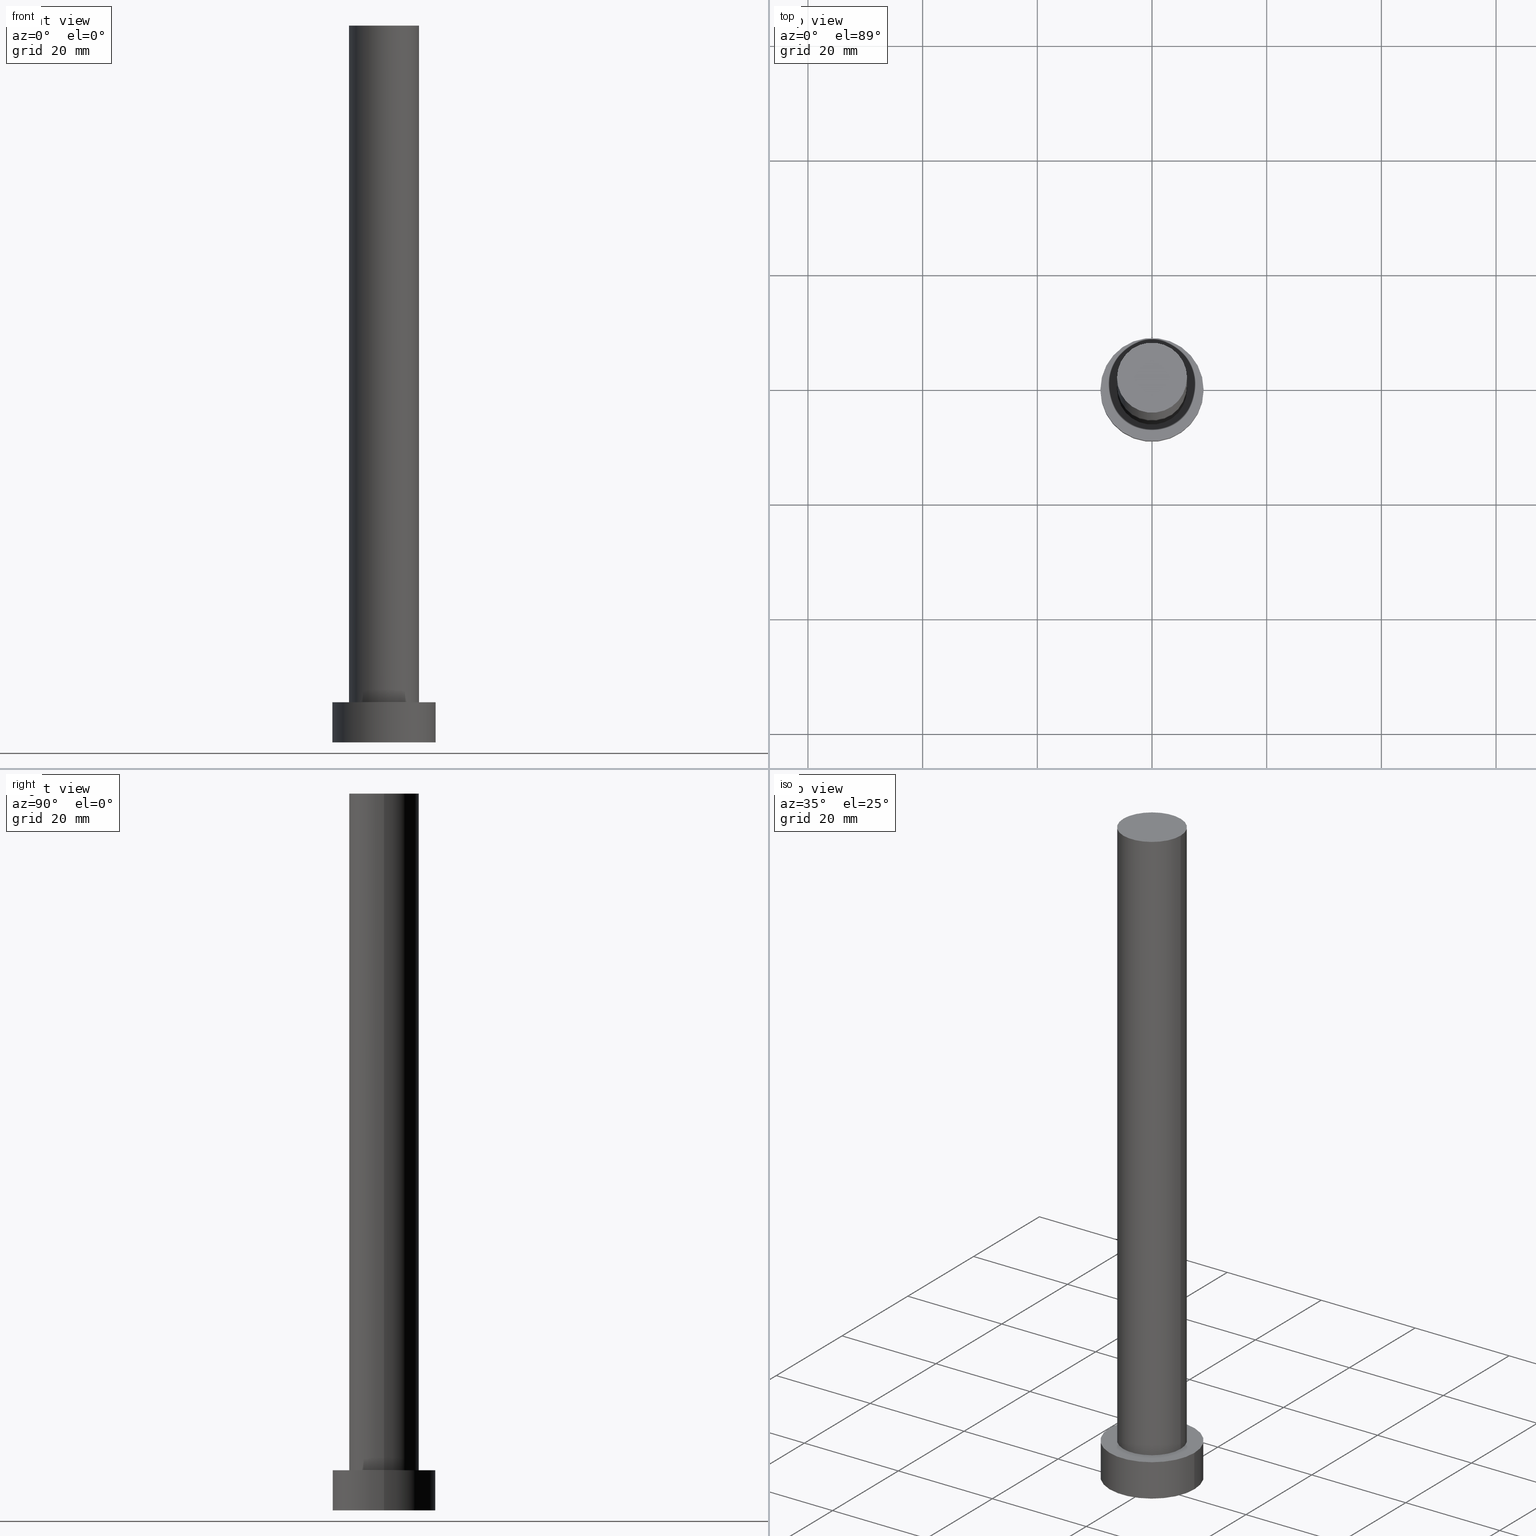
[diagram: canonical four-view strip — front | top / right | iso, engineering-drawing reading convention]
A machine part, canonical four-view strip (front | top / right | iso — engineering-drawing reading convention). The complete STEP part file that produces these views, byte-faithful:
ISO-10303-21;
HEADER;
FILE_DESCRIPTION (( 'STEP AP203' ),
    '1' );
FILE_NAME ('7da1.STEP',
    '2023-02-12T11:03:48',
    ( '' ),
    ( '' ),
    'SwSTEP 2.0',
    'SolidWorks 2019',
    '' );
FILE_SCHEMA (( 'CONFIG_CONTROL_DESIGN' ));
ENDSEC;

DATA;
#1 = PERSON_AND_ORGANIZATION ( #130, #121 ) ;
#2 = CARTESIAN_POINT ( 'NONE',  ( 0.000000000000000000, 0.000000000000000000, 7.000000000000000000 ) ) ;
#3 = ORIENTED_EDGE ( 'NONE', *, *, #207, .T. ) ;
#4 = AXIS2_PLACEMENT_3D ( 'NONE', #33, #117, #91 ) ;
#5 = PRODUCT_DEFINITION ( 'NEZN�M�', '', #67, #232 ) ;
#6 = FACE_OUTER_BOUND ( 'NONE', #226, .T. ) ;
#7 = ORIENTED_EDGE ( 'NONE', *, *, #173, .F. ) ;
#8 = DIRECTION ( 'NONE',  ( -0.000000000000000000, -0.000000000000000000, -1.000000000000000000 ) ) ;
#9 = LOCAL_TIME ( 12, 3, 48.00000000000000000, #75 ) ;
#10 = DIRECTION ( 'NONE',  ( 0.000000000000000000, 0.000000000000000000, 1.000000000000000000 ) ) ;
#11 = APPROVAL_STATUS ( 'not_yet_approved' ) ;
#12 = DIRECTION ( 'NONE',  ( 0.000000000000000000, 0.000000000000000000, 1.000000000000000000 ) ) ;
#13 = CC_DESIGN_APPROVAL ( #194, ( #67 ) ) ;
#14 = APPROVAL_DATE_TIME ( #18, #194 ) ;
#15 = CARTESIAN_POINT ( 'NONE',  ( 9.000000000000000000, 1.102182119232617714E-15, 0.000000000000000000 ) ) ;
#16 = UNCERTAINTY_MEASURE_WITH_UNIT (LENGTH_MEASURE( 1.000000000000000082E-05 ), #55, 'distance_accuracy_value', 'NONE');
#17 = DATE_TIME_ROLE ( 'classification_date' ) ;
#18 = DATE_AND_TIME ( #96, #47 ) ;
#19 = CLOSED_SHELL ( 'NONE', ( #246, #31, #80, #36, #82, #102, #167 ) ) ;
#20 = VERTEX_POINT ( 'NONE', #127 ) ;
#21 = ORIENTED_EDGE ( 'NONE', *, *, #239, .F. ) ;
#22 = DIRECTION ( 'NONE',  ( 0.000000000000000000, 0.000000000000000000, 1.000000000000000000 ) ) ;
#23 = DIRECTION ( 'NONE',  ( 1.000000000000000000, 0.000000000000000000, 0.000000000000000000 ) ) ;
#24 = EDGE_CURVE ( 'NONE', #105, #58, #118, .T. ) ;
#25 = ORIENTED_EDGE ( 'NONE', *, *, #207, .F. ) ;
#26 = PLANE ( 'NONE',  #188 ) ;
#27 = CIRCLE ( 'NONE', #93, 6.099999999999999645 ) ;
#28 = APPLICATION_CONTEXT ( 'configuration controlled 3d designs of mechanical parts and assemblies' ) ;
#29 = CARTESIAN_POINT ( 'NONE',  ( 6.099999999999999645, 7.470345474798854293E-16, 7.000000000000000000 ) ) ;
#30 = FACE_BOUND ( 'NONE', #229, .T. ) ;
#31 = ADVANCED_FACE ( 'NONE', ( #189 ), #151, .T. ) ;
#32 = FACE_OUTER_BOUND ( 'NONE', #37, .T. ) ;
#33 = CARTESIAN_POINT ( 'NONE',  ( 0.000000000000000000, 0.000000000000000000, 0.000000000000000000 ) ) ;
#34 = DATE_AND_TIME ( #155, #9 ) ;
#35 = CARTESIAN_POINT ( 'NONE',  ( -9.000000000000000000, 0.000000000000000000, 7.000000000000000000 ) ) ;
#36 = ADVANCED_FACE ( 'NONE', ( #30, #174 ), #249, .T. ) ;
#37 = EDGE_LOOP ( 'NONE', ( #3, #142 ) ) ;
#38 = SECURITY_CLASSIFICATION_LEVEL ( 'unclassified' ) ;
#39 = LINE ( 'NONE', #252, #175 ) ;
#40 = MANIFOLD_SOLID_BREP ( 'P�idat vysunut�m3', #19 ) ;
#41 = DIRECTION ( 'NONE',  ( 1.000000000000000000, 0.000000000000000000, -0.000000000000000000 ) ) ;
#42 = EDGE_LOOP ( 'NONE', ( #120, #112 ) ) ;
#43 = DIRECTION ( 'NONE',  ( 1.000000000000000000, 0.000000000000000000, 0.000000000000000000 ) ) ;
#44 = FACE_OUTER_BOUND ( 'NONE', #219, .T. ) ;
#45 = EDGE_LOOP ( 'NONE', ( #241, #238 ) ) ;
#46 = AXIS2_PLACEMENT_3D ( 'NONE', #164, #181, #43 ) ;
#47 = LOCAL_TIME ( 12, 3, 48.00000000000000000, #114 ) ;
#48 = ORIENTED_EDGE ( 'NONE', *, *, #110, .T. ) ;
#49 = DIRECTION ( 'NONE',  ( -1.000000000000000000, 0.000000000000000000, 0.000000000000000000 ) ) ;
#50 = APPLICATION_CONTEXT ( 'configuration controlled 3d designs of mechanical parts and assemblies' ) ;
#51 = CARTESIAN_POINT ( 'NONE',  ( 0.000000000000000000, 0.000000000000000000, 7.000000000000000000 ) ) ;
#52 = CIRCLE ( 'NONE', #4, 9.000000000000000000 ) ;
#53 = AXIS2_PLACEMENT_3D ( 'NONE', #2, #199, #23 ) ;
#54 = CARTESIAN_POINT ( 'NONE',  ( 0.000000000000000000, 0.000000000000000000, 7.000000000000000000 ) ) ;
#55 =( LENGTH_UNIT ( ) NAMED_UNIT ( * ) SI_UNIT ( .MILLI., .METRE. ) );
#56 = DATE_AND_TIME ( #193, #97 ) ;
#57 = CALENDAR_DATE ( 2023, 12, 2 ) ;
#58 = VERTEX_POINT ( 'NONE', #250 ) ;
#59 = ORIENTED_EDGE ( 'NONE', *, *, #239, .T. ) ;
#60 = AXIS2_PLACEMENT_3D ( 'NONE', #64, #185, #197 ) ;
#61 = AXIS2_PLACEMENT_3D ( 'NONE', #51, #12, #233 ) ;
#62 = EDGE_CURVE ( 'NONE', #58, #105, #52, .T. ) ;
#63 = VERTEX_POINT ( 'NONE', #72 ) ;
#64 = CARTESIAN_POINT ( 'NONE',  ( 0.000000000000000000, 0.000000000000000000, 7.000000000000000000 ) ) ;
#65 = CC_DESIGN_PERSON_AND_ORGANIZATION_ASSIGNMENT ( #242, #128, ( #5 ) ) ;
#66 = CIRCLE ( 'NONE', #53, 9.000000000000000000 ) ;
#67 = PRODUCT_DEFINITION_FORMATION_WITH_SPECIFIED_SOURCE ( 'LIBOVOLN�', '', #220, .NOT_KNOWN. ) ;
#68 = VERTEX_POINT ( 'NONE', #29 ) ;
#69 = DIRECTION ( 'NONE',  ( -0.000000000000000000, -0.000000000000000000, -1.000000000000000000 ) ) ;
#70 = PRODUCT_RELATED_PRODUCT_CATEGORY ( 'detail', '', ( #220 ) ) ;
#71 = SECURITY_CLASSIFICATION ( '', '', #38 ) ;
#72 = CARTESIAN_POINT ( 'NONE',  ( 9.000000000000000000, 1.102182119232617714E-15, 7.000000000000000000 ) ) ;
#73 = PERSON_AND_ORGANIZATION_ROLE ( 'design_supplier' ) ;
#74 = LOCAL_TIME ( 12, 3, 48.00000000000000000, #224 ) ;
#75 = COORDINATED_UNIVERSAL_TIME_OFFSET ( 1, 0, .AHEAD. ) ;
#76 = EDGE_CURVE ( 'NONE', #20, #68, #153, .T. ) ;
#77 = LINE ( 'NONE', #236, #95 ) ;
#78 = APPROVAL_PERSON_ORGANIZATION ( #166, #113, #221 ) ;
#79 = DATE_AND_TIME ( #57, #160 ) ;
#80 = ADVANCED_FACE ( 'NONE', ( #231 ), #248, .T. ) ;
#81 = EDGE_LOOP ( 'NONE', ( #223, #255, #111, #21 ) ) ;
#82 = ADVANCED_FACE ( 'NONE', ( #192 ), #26, .F. ) ;
#83 = PERSON_AND_ORGANIZATION_ROLE ( 'design_owner' ) ;
#84 = LINE ( 'NONE', #240, #86 ) ;
#85 = ORIENTED_EDGE ( 'NONE', *, *, #145, .F. ) ;
#86 = VECTOR ( 'NONE', #168, 1000.000000000000000 ) ;
#87 = LINE ( 'NONE', #125, #179 ) ;
#88 = DIRECTION ( 'NONE',  ( 1.000000000000000000, 0.000000000000000000, 0.000000000000000000 ) ) ;
#89 = CC_DESIGN_PERSON_AND_ORGANIZATION_ASSIGNMENT ( #178, #251, ( #71 ) ) ;
#90 = ADVANCED_BREP_SHAPE_REPRESENTATION ( '7da1', ( #40, #176 ), #209 ) ;
#91 = DIRECTION ( 'NONE',  ( 1.000000000000000000, 0.000000000000000000, 0.000000000000000000 ) ) ;
#92 = AXIS2_PLACEMENT_3D ( 'NONE', #169, #149, #208 ) ;
#93 = AXIS2_PLACEMENT_3D ( 'NONE', #186, #146, #104 ) ;
#94 = DIRECTION ( 'NONE',  ( 1.000000000000000000, 0.000000000000000000, -0.000000000000000000 ) ) ;
#95 = VECTOR ( 'NONE', #217, 1000.000000000000000 ) ;
#96 = CALENDAR_DATE ( 2023, 12, 2 ) ;
#97 = LOCAL_TIME ( 12, 3, 48.00000000000000000, #247 ) ;
#98 = PLANE ( 'NONE',  #237 ) ;
#99 = PERSON_AND_ORGANIZATION ( #130, #121 ) ;
#100 = ORIENTED_EDGE ( 'NONE', *, *, #110, .F. ) ;
#101 = ORIENTED_EDGE ( 'NONE', *, *, #62, .T. ) ;
#102 = ADVANCED_FACE ( 'NONE', ( #44 ), #200, .T. ) ;
#103 = ORIENTED_EDGE ( 'NONE', *, *, #182, .T. ) ;
#104 = DIRECTION ( 'NONE',  ( 1.000000000000000000, 0.000000000000000000, 0.000000000000000000 ) ) ;
#105 = VERTEX_POINT ( 'NONE', #15 ) ;
#106 = CARTESIAN_POINT ( 'NONE',  ( 6.099999999999999645, 7.470345474798854293E-16, 125.0000000000000000 ) ) ;
#107 = ORIENTED_EDGE ( 'NONE', *, *, #198, .F. ) ;
#108 = DATE_AND_TIME ( #124, #74 ) ;
#109 = CARTESIAN_POINT ( 'NONE',  ( 0.000000000000000000, 0.000000000000000000, 125.0000000000000000 ) ) ;
#110 = EDGE_CURVE ( 'NONE', #165, #20, #39, .T. ) ;
#111 = ORIENTED_EDGE ( 'NONE', *, *, #24, .T. ) ;
#112 = ORIENTED_EDGE ( 'NONE', *, *, #215, .T. ) ;
#113 = APPROVAL ( #147, 'NEUR�EN�' ) ;
#114 = COORDINATED_UNIVERSAL_TIME_OFFSET ( 1, 0, .AHEAD. ) ;
#115 = APPROVAL_ROLE ( '' ) ;
#116 = APPROVAL ( #253, 'NEUR�EN�' ) ;
#117 = DIRECTION ( 'NONE',  ( 0.000000000000000000, 0.000000000000000000, 1.000000000000000000 ) ) ;
#118 = CIRCLE ( 'NONE', #92, 9.000000000000000000 ) ;
#119 = DIRECTION ( 'NONE',  ( -0.000000000000000000, -0.000000000000000000, -1.000000000000000000 ) ) ;
#120 = ORIENTED_EDGE ( 'NONE', *, *, #173, .T. ) ;
#121 = ORGANIZATION ( 'NEUR�EN�', 'NEUR�EN�', '' ) ;
#122 = ORIENTED_EDGE ( 'NONE', *, *, #227, .T. ) ;
#123 = PRODUCT_DEFINITION_SHAPE ( 'NONE', 'NONE',  #5 ) ;
#124 = CALENDAR_DATE ( 2023, 12, 2 ) ;
#125 = CARTESIAN_POINT ( 'NONE',  ( -9.000000000000000000, 0.000000000000000000, 7.000000000000000000 ) ) ;
#126 = CIRCLE ( 'NONE', #46, 9.000000000000000000 ) ;
#127 = CARTESIAN_POINT ( 'NONE',  ( -6.099999999999999645, 0.000000000000000000, 7.000000000000000000 ) ) ;
#128 = PERSON_AND_ORGANIZATION_ROLE ( 'creator' ) ;
#129 = CARTESIAN_POINT ( 'NONE',  ( 0.000000000000000000, 0.000000000000000000, 0.000000000000000000 ) ) ;
#130 = PERSON ( 'NEUR�EN�', 'NEUR�EN�', 'NEUR�EN�', ('NEUR�EN�'), ('NEUR�EN�'), ('NEUR�EN�') ) ;
#131 = CARTESIAN_POINT ( 'NONE',  ( 0.000000000000000000, 0.000000000000000000, 7.000000000000000000 ) ) ;
#132 = CC_DESIGN_PERSON_AND_ORGANIZATION_ASSIGNMENT ( #172, #180, ( #67 ) ) ;
#133 = PERSON_AND_ORGANIZATION ( #130, #121 ) ;
#134 = DIRECTION ( 'NONE',  ( -0.000000000000000000, -0.000000000000000000, -1.000000000000000000 ) ) ;
#135 = CARTESIAN_POINT ( 'NONE',  ( 0.000000000000000000, 0.000000000000000000, 125.0000000000000000 ) ) ;
#136 = APPROVAL_DATE_TIME ( #79, #116 ) ;
#137 = DIRECTION ( 'NONE',  ( -0.000000000000000000, -0.000000000000000000, -1.000000000000000000 ) ) ;
#138 = CC_DESIGN_DATE_AND_TIME_ASSIGNMENT ( #34, #17, ( #71 ) ) ;
#139 = APPLICATION_PROTOCOL_DEFINITION ( 'international standard', 'config_control_design', 1994, #50 ) ;
#140 = CIRCLE ( 'NONE', #202, 6.099999999999999645 ) ;
#141 = AXIS2_PLACEMENT_3D ( 'NONE', #154, #134, #212 ) ;
#142 = ORIENTED_EDGE ( 'NONE', *, *, #198, .T. ) ;
#143 = DIRECTION ( 'NONE',  ( -1.000000000000000000, 0.000000000000000000, 0.000000000000000000 ) ) ;
#144 = ORIENTED_EDGE ( 'NONE', *, *, #76, .T. ) ;
#145 = EDGE_CURVE ( 'NONE', #63, #105, #77, .T. ) ;
#146 = DIRECTION ( 'NONE',  ( 0.000000000000000000, 0.000000000000000000, 1.000000000000000000 ) ) ;
#147 = APPROVAL_STATUS ( 'not_yet_approved' ) ;
#148 = CARTESIAN_POINT ( 'NONE',  ( 0.000000000000000000, 0.000000000000000000, 125.0000000000000000 ) ) ;
#149 = DIRECTION ( 'NONE',  ( 0.000000000000000000, 0.000000000000000000, 1.000000000000000000 ) ) ;
#150 = VERTEX_POINT ( 'NONE', #35 ) ;
#151 = CYLINDRICAL_SURFACE ( 'NONE', #195, 9.000000000000000000 ) ;
#152 = MECHANICAL_CONTEXT ( 'NONE', #50, 'mechanical' ) ;
#153 = CIRCLE ( 'NONE', #61, 6.099999999999999645 ) ;
#154 = CARTESIAN_POINT ( 'NONE',  ( 0.000000000000000000, 0.000000000000000000, 7.000000000000000000 ) ) ;
#155 = CALENDAR_DATE ( 2023, 12, 2 ) ;
#156 =( NAMED_UNIT ( * ) PLANE_ANGLE_UNIT ( ) SI_UNIT ( $, .RADIAN. ) );
#157 = COORDINATED_UNIVERSAL_TIME_OFFSET ( 1, 0, .AHEAD. ) ;
#158 = CC_DESIGN_PERSON_AND_ORGANIZATION_ASSIGNMENT ( #1, #83, ( #220 ) ) ;
#159 = DIRECTION ( 'NONE',  ( 0.000000000000000000, 0.000000000000000000, 1.000000000000000000 ) ) ;
#160 = LOCAL_TIME ( 12, 3, 48.00000000000000000, #157 ) ;
#161 = ORIENTED_EDGE ( 'NONE', *, *, #182, .F. ) ;
#162 = APPLICATION_PROTOCOL_DEFINITION ( 'international standard', 'config_control_design', 1994, #28 ) ;
#163 = CC_DESIGN_DATE_AND_TIME_ASSIGNMENT ( #56, #234, ( #5 ) ) ;
#164 = CARTESIAN_POINT ( 'NONE',  ( 0.000000000000000000, 0.000000000000000000, 7.000000000000000000 ) ) ;
#165 = VERTEX_POINT ( 'NONE', #177 ) ;
#166 = PERSON_AND_ORGANIZATION ( #130, #121 ) ;
#167 = ADVANCED_FACE ( 'NONE', ( #32 ), #98, .T. ) ;
#168 = DIRECTION ( 'NONE',  ( -0.000000000000000000, -0.000000000000000000, -1.000000000000000000 ) ) ;
#169 = CARTESIAN_POINT ( 'NONE',  ( 0.000000000000000000, 0.000000000000000000, 0.000000000000000000 ) ) ;
#170 = CYLINDRICAL_SURFACE ( 'NONE', #244, 6.099999999999999645 ) ;
#171 = DIRECTION ( 'NONE',  ( 0.000000000000000000, 0.000000000000000000, 1.000000000000000000 ) ) ;
#172 = PERSON_AND_ORGANIZATION ( #130, #121 ) ;
#173 = EDGE_CURVE ( 'NONE', #150, #63, #126, .T. ) ;
#174 = FACE_OUTER_BOUND ( 'NONE', #42, .T. ) ;
#175 = VECTOR ( 'NONE', #137, 1000.000000000000000 ) ;
#176 = AXIS2_PLACEMENT_3D ( 'NONE', #216, #10, #88 ) ;
#177 = CARTESIAN_POINT ( 'NONE',  ( -6.099999999999999645, 0.000000000000000000, 125.0000000000000000 ) ) ;
#178 = PERSON_AND_ORGANIZATION ( #130, #121 ) ;
#179 = VECTOR ( 'NONE', #187, 1000.000000000000000 ) ;
#180 = PERSON_AND_ORGANIZATION_ROLE ( 'creator' ) ;
#181 = DIRECTION ( 'NONE',  ( 0.000000000000000000, 0.000000000000000000, 1.000000000000000000 ) ) ;
#182 = EDGE_CURVE ( 'NONE', #68, #20, #230, .T. ) ;
#183 = DIRECTION ( 'NONE',  ( 1.000000000000000000, 0.000000000000000000, 0.000000000000000000 ) ) ;
#184 = SHAPE_DEFINITION_REPRESENTATION ( #123, #90 ) ;
#185 = DIRECTION ( 'NONE',  ( 0.000000000000000000, 0.000000000000000000, 1.000000000000000000 ) ) ;
#186 = CARTESIAN_POINT ( 'NONE',  ( 0.000000000000000000, 0.000000000000000000, 125.0000000000000000 ) ) ;
#187 = DIRECTION ( 'NONE',  ( -0.000000000000000000, -0.000000000000000000, -1.000000000000000000 ) ) ;
#188 = AXIS2_PLACEMENT_3D ( 'NONE', #129, #190, #94 ) ;
#189 = FACE_OUTER_BOUND ( 'NONE', #81, .T. ) ;
#190 = DIRECTION ( 'NONE',  ( 0.000000000000000000, 0.000000000000000000, 1.000000000000000000 ) ) ;
#191 = APPROVAL_PERSON_ORGANIZATION ( #99, #116, #235 ) ;
#192 = FACE_OUTER_BOUND ( 'NONE', #45, .T. ) ;
#193 = CALENDAR_DATE ( 2023, 12, 2 ) ;
#194 = APPROVAL ( #11, 'NEUR�EN�' ) ;
#195 = AXIS2_PLACEMENT_3D ( 'NONE', #54, #8, #211 ) ;
#196 = VERTEX_POINT ( 'NONE', #106 ) ;
#197 = DIRECTION ( 'NONE',  ( 1.000000000000000000, 0.000000000000000000, 0.000000000000000000 ) ) ;
#198 = EDGE_CURVE ( 'NONE', #196, #165, #140, .T. ) ;
#199 = DIRECTION ( 'NONE',  ( 0.000000000000000000, 0.000000000000000000, 1.000000000000000000 ) ) ;
#200 = CYLINDRICAL_SURFACE ( 'NONE', #203, 6.099999999999999645 ) ;
#201 = EDGE_LOOP ( 'NONE', ( #85, #7, #59, #101 ) ) ;
#202 = AXIS2_PLACEMENT_3D ( 'NONE', #148, #22, #183 ) ;
#203 = AXIS2_PLACEMENT_3D ( 'NONE', #109, #119, #143 ) ;
#204 = ORIENTED_EDGE ( 'NONE', *, *, #76, .F. ) ;
#205 = CC_DESIGN_APPROVAL ( #113, ( #5 ) ) ;
#206 = APPROVAL_DATE_TIME ( #108, #113 ) ;
#207 = EDGE_CURVE ( 'NONE', #165, #196, #27, .T. ) ;
#208 = DIRECTION ( 'NONE',  ( 1.000000000000000000, 0.000000000000000000, 0.000000000000000000 ) ) ;
#209 =( GEOMETRIC_REPRESENTATION_CONTEXT ( 3 ) GLOBAL_UNCERTAINTY_ASSIGNED_CONTEXT ( ( #16 ) ) GLOBAL_UNIT_ASSIGNED_CONTEXT ( ( #55, #156, #213 ) ) REPRESENTATION_CONTEXT ( 'NONE', 'WORKASPACE' ) );
#210 = CC_DESIGN_SECURITY_CLASSIFICATION ( #71, ( #67 ) ) ;
#211 = DIRECTION ( 'NONE',  ( -1.000000000000000000, 0.000000000000000000, 0.000000000000000000 ) ) ;
#212 = DIRECTION ( 'NONE',  ( -1.000000000000000000, 0.000000000000000000, 0.000000000000000000 ) ) ;
#213 =( NAMED_UNIT ( * ) SI_UNIT ( $, .STERADIAN. ) SOLID_ANGLE_UNIT ( ) );
#214 = ORIENTED_EDGE ( 'NONE', *, *, #227, .F. ) ;
#215 = EDGE_CURVE ( 'NONE', #63, #150, #66, .T. ) ;
#216 = CARTESIAN_POINT ( 'NONE',  ( 0.000000000000000000, 0.000000000000000000, 0.000000000000000000 ) ) ;
#217 = DIRECTION ( 'NONE',  ( -0.000000000000000000, -0.000000000000000000, -1.000000000000000000 ) ) ;
#218 = APPROVAL_PERSON_ORGANIZATION ( #254, #194, #115 ) ;
#219 = EDGE_LOOP ( 'NONE', ( #214, #25, #48, #144 ) ) ;
#220 = PRODUCT ( '7da1', '7da1', '', ( #152 ) ) ;
#221 = APPROVAL_ROLE ( '' ) ;
#222 = CC_DESIGN_PERSON_AND_ORGANIZATION_ASSIGNMENT ( #133, #73, ( #67 ) ) ;
#223 = ORIENTED_EDGE ( 'NONE', *, *, #215, .F. ) ;
#224 = COORDINATED_UNIVERSAL_TIME_OFFSET ( 1, 0, .AHEAD. ) ;
#225 = CC_DESIGN_APPROVAL ( #116, ( #71 ) ) ;
#226 = EDGE_LOOP ( 'NONE', ( #107, #122, #103, #100 ) ) ;
#227 = EDGE_CURVE ( 'NONE', #196, #68, #84, .T. ) ;
#228 = AXIS2_PLACEMENT_3D ( 'NONE', #131, #171, #245 ) ;
#229 = EDGE_LOOP ( 'NONE', ( #204, #161 ) ) ;
#230 = CIRCLE ( 'NONE', #60, 6.099999999999999645 ) ;
#231 = FACE_OUTER_BOUND ( 'NONE', #201, .T. ) ;
#232 = DESIGN_CONTEXT ( 'detailed design', #28, 'design' ) ;
#233 = DIRECTION ( 'NONE',  ( 1.000000000000000000, 0.000000000000000000, 0.000000000000000000 ) ) ;
#234 = DATE_TIME_ROLE ( 'creation_date' ) ;
#235 = APPROVAL_ROLE ( '' ) ;
#236 = CARTESIAN_POINT ( 'NONE',  ( 9.000000000000000000, 1.102182119232617714E-15, 7.000000000000000000 ) ) ;
#237 = AXIS2_PLACEMENT_3D ( 'NONE', #135, #159, #41 ) ;
#238 = ORIENTED_EDGE ( 'NONE', *, *, #24, .F. ) ;
#239 = EDGE_CURVE ( 'NONE', #150, #58, #87, .T. ) ;
#240 = CARTESIAN_POINT ( 'NONE',  ( 6.099999999999999645, 7.470345474798854293E-16, 125.0000000000000000 ) ) ;
#241 = ORIENTED_EDGE ( 'NONE', *, *, #62, .F. ) ;
#242 = PERSON_AND_ORGANIZATION ( #130, #121 ) ;
#243 = CARTESIAN_POINT ( 'NONE',  ( 0.000000000000000000, 0.000000000000000000, 125.0000000000000000 ) ) ;
#244 = AXIS2_PLACEMENT_3D ( 'NONE', #243, #69, #49 ) ;
#245 = DIRECTION ( 'NONE',  ( 1.000000000000000000, 0.000000000000000000, -0.000000000000000000 ) ) ;
#246 = ADVANCED_FACE ( 'NONE', ( #6 ), #170, .T. ) ;
#247 = COORDINATED_UNIVERSAL_TIME_OFFSET ( 1, 0, .AHEAD. ) ;
#248 = CYLINDRICAL_SURFACE ( 'NONE', #141, 9.000000000000000000 ) ;
#249 = PLANE ( 'NONE',  #228 ) ;
#250 = CARTESIAN_POINT ( 'NONE',  ( -9.000000000000000000, 0.000000000000000000, 0.000000000000000000 ) ) ;
#251 = PERSON_AND_ORGANIZATION_ROLE ( 'classification_officer' ) ;
#252 = CARTESIAN_POINT ( 'NONE',  ( -6.099999999999999645, 0.000000000000000000, 125.0000000000000000 ) ) ;
#253 = APPROVAL_STATUS ( 'not_yet_approved' ) ;
#254 = PERSON_AND_ORGANIZATION ( #130, #121 ) ;
#255 = ORIENTED_EDGE ( 'NONE', *, *, #145, .T. ) ;
ENDSEC;
END-ISO-10303-21;
